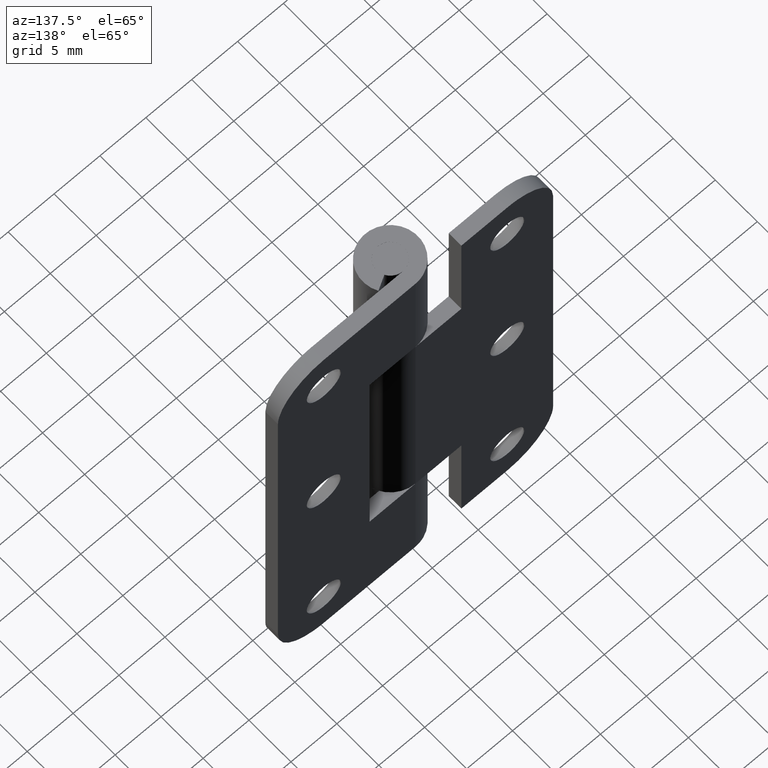
[diagram: clean part render]
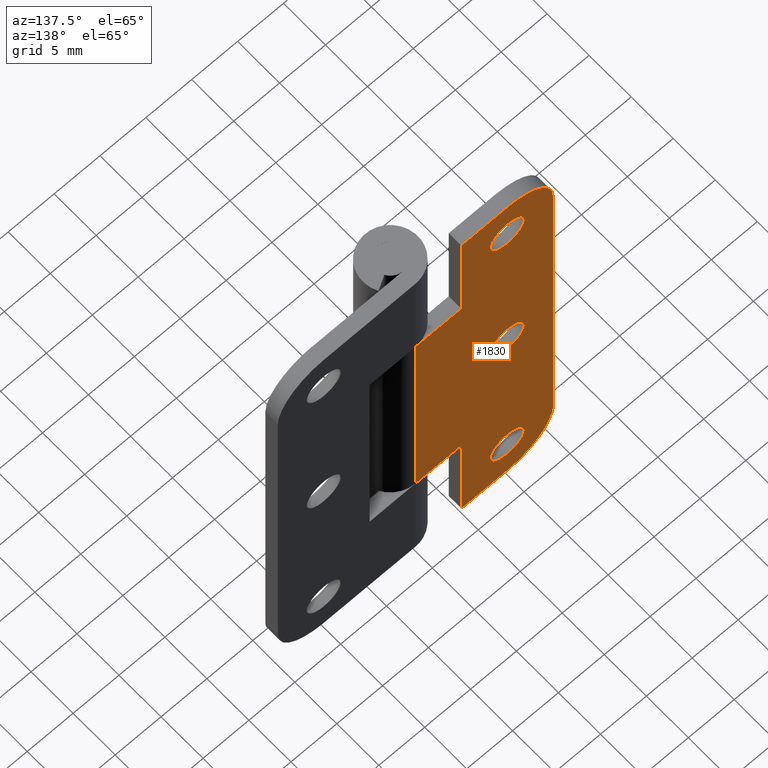
[diagram: same view with one face highlighted and labeled with its STEP entity id]
A machine part, auxiliary view. The second image highlights one B-rep face of the part: STEP entity #1830.
In plain terms, the highlighted face is a freeform B-spline surface patch.
Its self-contained STEP definition (entity closure, byte-faithful):
#330=CARTESIAN_POINT('',(-8.162081995989144,3.0,44.788913736750231));
#331=VERTEX_POINT('',#330);
#337=CARTESIAN_POINT('',(-10.0,3.0,43.149999999999999));
#338=VERTEX_POINT('',#337);
#339=CARTESIAN_POINT('',(-8.162081995989144,3.000000000000000,44.788913736750231));
#340=CARTESIAN_POINT('',(-8.350312499917568,3.000000000000000,43.149999999999999));
#341=CARTESIAN_POINT('',(-10.0,3.0,43.149999999999999));
#349=(BOUNDED_CURVE()B_SPLINE_CURVE(2,(#339,#340,#341),.UNSPECIFIED.,.F.,.U.)B_SPLINE_CURVE_WITH_KNOTS((3,3),(0.269767762042324,0.500000000000000),.UNSPECIFIED.)CURVE()GEOMETRIC_REPRESENTATION_ITEM()RATIONAL_B_SPLINE_CURVE((0.957343724298200,0.730266154999807,1.0))REPRESENTATION_ITEM(''));
#350=EDGE_CURVE('',#331,#338,#349,.T.);
#352=CARTESIAN_POINT('',(-11.846549376997309,3.0,44.887060200501132));
#353=VERTEX_POINT('',#352);
#354=CARTESIAN_POINT('',(-10.0,3.0,43.149999999999999));
#355=CARTESIAN_POINT('',(-11.740306221208408,3.0,43.150000000000006));
#356=CARTESIAN_POINT('',(-11.846549376997316,3.000000000000000,44.887060200501118));
#364=(BOUNDED_CURVE()B_SPLINE_CURVE(2,(#354,#355,#356),.UNSPECIFIED.,.F.,.U.)B_SPLINE_CURVE_WITH_KNOTS((3,3),(0.500000000000000,0.739332961987919),.UNSPECIFIED.)CURVE()GEOMETRIC_REPRESENTATION_ITEM()RATIONAL_B_SPLINE_CURVE((1.0,0.719603993580803,0.976072041128726))REPRESENTATION_ITEM(''));
#365=EDGE_CURVE('',#338,#353,#364,.T.);
#460=CARTESIAN_POINT('',(-10.0,3.0,46.849999999999987));
#461=VERTEX_POINT('',#460);
#462=CARTESIAN_POINT('',(-11.846549376997306,3.000000000000000,44.887060200501125));
#463=CARTESIAN_POINT('',(-11.850000000000000,3.000000000000000,44.943477386534411));
#464=CARTESIAN_POINT('',(-11.850000000000000,3.0,45.0));
#465=CARTESIAN_POINT('',(-11.849999999999998,3.0,46.849999999999994));
#466=CARTESIAN_POINT('',(-10.0,3.0,46.849999999999987));
#474=(BOUNDED_CURVE()B_SPLINE_CURVE(2,(#462,#463,#464,#465,#466),.UNSPECIFIED.,.F.,.U.)B_SPLINE_CURVE_WITH_KNOTS((3,2,3),(0.739332961987919,0.750000000000000,1.0),.UNSPECIFIED.)CURVE()GEOMETRIC_REPRESENTATION_ITEM()RATIONAL_B_SPLINE_CURVE((0.976072041128725,0.987502787605744,1.0,0.707106781186548,1.0))REPRESENTATION_ITEM(''));
#475=EDGE_CURVE('',#353,#461,#474,.T.);
#477=CARTESIAN_POINT('',(-10.0,3.0,46.849999999999987));
#478=CARTESIAN_POINT('',(-8.150000000000000,3.0,46.849999999999994));
#479=CARTESIAN_POINT('',(-8.150000000000000,3.0,45.0));
#480=CARTESIAN_POINT('',(-8.150000000000000,3.000000000000000,44.894111081392616));
#481=CARTESIAN_POINT('',(-8.162081995989144,3.000000000000000,44.788913736750231));
#489=(BOUNDED_CURVE()B_SPLINE_CURVE(2,(#477,#478,#479,#480,#481),.UNSPECIFIED.,.F.,.U.)B_SPLINE_CURVE_WITH_KNOTS((3,2,3),(0.0,0.250000000000000,0.269767762042324),.UNSPECIFIED.)CURVE()GEOMETRIC_REPRESENTATION_ITEM()RATIONAL_B_SPLINE_CURVE((1.0,0.707106781186548,1.0,0.976840626186741,0.957343724298200))REPRESENTATION_ITEM(''));
#490=EDGE_CURVE('',#461,#331,#489,.T.);
#658=CARTESIAN_POINT('',(-8.162081995989144,3.0,24.788913736750249));
#659=VERTEX_POINT('',#658);
#665=CARTESIAN_POINT('',(-10.0,3.0,23.149999999999999));
#666=VERTEX_POINT('',#665);
#667=CARTESIAN_POINT('',(-8.162081995989144,3.0,24.788913736750246));
#668=CARTESIAN_POINT('',(-8.350312499917557,3.000000000000001,23.150000000000002));
#669=CARTESIAN_POINT('',(-10.0,3.0,23.149999999999999));
#677=(BOUNDED_CURVE()B_SPLINE_CURVE(2,(#667,#668,#669),.UNSPECIFIED.,.F.,.U.)B_SPLINE_CURVE_WITH_KNOTS((3,3),(0.269767762042323,0.500000000000000),.UNSPECIFIED.)CURVE()GEOMETRIC_REPRESENTATION_ITEM()RATIONAL_B_SPLINE_CURVE((0.957343724298202,0.730266154999806,1.0))REPRESENTATION_ITEM(''));
#678=EDGE_CURVE('',#659,#666,#677,.T.);
#680=CARTESIAN_POINT('',(-11.846549376997309,3.0,24.887060200501129));
#681=VERTEX_POINT('',#680);
#682=CARTESIAN_POINT('',(-10.0,3.0,23.149999999999999));
#683=CARTESIAN_POINT('',(-11.740306221208408,3.0,23.149999999999995));
#684=CARTESIAN_POINT('',(-11.846549376997316,3.000000000000000,24.887060200501132));
#692=(BOUNDED_CURVE()B_SPLINE_CURVE(2,(#682,#683,#684),.UNSPECIFIED.,.F.,.U.)B_SPLINE_CURVE_WITH_KNOTS((3,3),(0.500000000000000,0.739332961987919),.UNSPECIFIED.)CURVE()GEOMETRIC_REPRESENTATION_ITEM()RATIONAL_B_SPLINE_CURVE((1.0,0.719603993580803,0.976072041128726))REPRESENTATION_ITEM(''));
#693=EDGE_CURVE('',#666,#681,#692,.T.);
#788=CARTESIAN_POINT('',(-10.0,3.0,26.850000000000001));
#789=VERTEX_POINT('',#788);
#790=CARTESIAN_POINT('',(-11.846549376997306,3.000000000000000,24.887060200501129));
#791=CARTESIAN_POINT('',(-11.850000000000000,3.000000000000000,24.943477386534415));
#792=CARTESIAN_POINT('',(-11.850000000000000,3.0,25.0));
#793=CARTESIAN_POINT('',(-11.849999999999998,3.0,26.849999999999998));
#794=CARTESIAN_POINT('',(-10.0,3.0,26.850000000000001));
#802=(BOUNDED_CURVE()B_SPLINE_CURVE(2,(#790,#791,#792,#793,#794),.UNSPECIFIED.,.F.,.U.)B_SPLINE_CURVE_WITH_KNOTS((3,2,3),(0.739332961987919,0.750000000000000,1.0),.UNSPECIFIED.)CURVE()GEOMETRIC_REPRESENTATION_ITEM()RATIONAL_B_SPLINE_CURVE((0.976072041128725,0.987502787605744,1.0,0.707106781186548,1.0))REPRESENTATION_ITEM(''));
#803=EDGE_CURVE('',#681,#789,#802,.T.);
#805=CARTESIAN_POINT('',(-10.0,3.0,26.850000000000001));
#806=CARTESIAN_POINT('',(-8.150000000000000,3.0,26.849999999999998));
#807=CARTESIAN_POINT('',(-8.150000000000000,3.0,25.0));
#808=CARTESIAN_POINT('',(-8.150000000000002,3.0,24.894111081392627));
#809=CARTESIAN_POINT('',(-8.162081995989144,3.0,24.788913736750246));
#817=(BOUNDED_CURVE()B_SPLINE_CURVE(2,(#805,#806,#807,#808,#809),.UNSPECIFIED.,.F.,.U.)B_SPLINE_CURVE_WITH_KNOTS((3,2,3),(0.0,0.250000000000000,0.269767762042323),.UNSPECIFIED.)CURVE()GEOMETRIC_REPRESENTATION_ITEM()RATIONAL_B_SPLINE_CURVE((1.0,0.707106781186548,1.0,0.976840626186742,0.957343724298202))REPRESENTATION_ITEM(''));
#818=EDGE_CURVE('',#789,#659,#817,.T.);
#986=CARTESIAN_POINT('',(-8.162081995989142,3.0,4.788913736750339));
#987=VERTEX_POINT('',#986);
#993=CARTESIAN_POINT('',(-10.0,3.0,3.150000000000100));
#994=VERTEX_POINT('',#993);
#995=CARTESIAN_POINT('',(-8.162081995989142,3.000000000000000,4.788913736750339));
#996=CARTESIAN_POINT('',(-8.350312499917564,3.000000000000000,3.150000000000099));
#997=CARTESIAN_POINT('',(-10.0,3.0,3.150000000000100));
#1005=(BOUNDED_CURVE()B_SPLINE_CURVE(2,(#995,#996,#997),.UNSPECIFIED.,.F.,.U.)B_SPLINE_CURVE_WITH_KNOTS((3,3),(0.269767762042324,0.500000000000000),.UNSPECIFIED.)CURVE()GEOMETRIC_REPRESENTATION_ITEM()RATIONAL_B_SPLINE_CURVE((0.957343724298201,0.730266154999806,1.0))REPRESENTATION_ITEM(''));
#1006=EDGE_CURVE('',#987,#994,#1005,.T.);
#1008=CARTESIAN_POINT('',(-11.846549376997309,3.0,4.887060200501230));
#1009=VERTEX_POINT('',#1008);
#1010=CARTESIAN_POINT('',(-10.0,3.0,3.150000000000100));
#1011=CARTESIAN_POINT('',(-11.740306221208408,3.0,3.150000000000101));
#1012=CARTESIAN_POINT('',(-11.846549376997316,3.000000000000000,4.887060200501230));
#1020=(BOUNDED_CURVE()B_SPLINE_CURVE(2,(#1010,#1011,#1012),.UNSPECIFIED.,.F.,.U.)B_SPLINE_CURVE_WITH_KNOTS((3,3),(0.500000000000000,0.739332961987919),.UNSPECIFIED.)CURVE()GEOMETRIC_REPRESENTATION_ITEM()RATIONAL_B_SPLINE_CURVE((1.0,0.719603993580803,0.976072041128726))REPRESENTATION_ITEM(''));
#1021=EDGE_CURVE('',#994,#1009,#1020,.T.);
#1116=CARTESIAN_POINT('',(-10.0,3.0,6.850000000000100));
#1117=VERTEX_POINT('',#1116);
#1118=CARTESIAN_POINT('',(-11.846549376997306,3.000000000000000,4.887060200501230));
#1119=CARTESIAN_POINT('',(-11.850000000000000,3.000000000000000,4.943477386534514));
#1120=CARTESIAN_POINT('',(-11.850000000000000,3.0,5.000000000000100));
#1121=CARTESIAN_POINT('',(-11.849999999999998,3.0,6.850000000000100));
#1122=CARTESIAN_POINT('',(-10.0,3.0,6.850000000000100));
#1130=(BOUNDED_CURVE()B_SPLINE_CURVE(2,(#1118,#1119,#1120,#1121,#1122),.UNSPECIFIED.,.F.,.U.)B_SPLINE_CURVE_WITH_KNOTS((3,2,3),(0.739332961987919,0.750000000000000,1.0),.UNSPECIFIED.)CURVE()GEOMETRIC_REPRESENTATION_ITEM()RATIONAL_B_SPLINE_CURVE((0.976072041128725,0.987502787605744,1.0,0.707106781186548,1.0))REPRESENTATION_ITEM(''));
#1131=EDGE_CURVE('',#1009,#1117,#1130,.T.);
#1133=CARTESIAN_POINT('',(-10.0,3.0,6.850000000000100));
#1134=CARTESIAN_POINT('',(-8.150000000000000,3.0,6.850000000000100));
#1135=CARTESIAN_POINT('',(-8.150000000000000,3.0,5.000000000000100));
#1136=CARTESIAN_POINT('',(-8.150000000000000,3.000000000000000,4.894111081392721));
#1137=CARTESIAN_POINT('',(-8.162081995989142,3.000000000000000,4.788913736750339));
#1145=(BOUNDED_CURVE()B_SPLINE_CURVE(2,(#1133,#1134,#1135,#1136,#1137),.UNSPECIFIED.,.F.,.U.)B_SPLINE_CURVE_WITH_KNOTS((3,2,3),(0.0,0.250000000000000,0.269767762042324),.UNSPECIFIED.)CURVE()GEOMETRIC_REPRESENTATION_ITEM()RATIONAL_B_SPLINE_CURVE((1.0,0.707106781186548,1.0,0.976840626186741,0.957343724298201))REPRESENTATION_ITEM(''));
#1146=EDGE_CURVE('',#1117,#987,#1145,.T.);
#1310=CARTESIAN_POINT('',(-10.0,3.0,50.0));
#1311=VERTEX_POINT('',#1310);
#1317=CARTESIAN_POINT('',(-15.0,3.0,45.0));
#1318=VERTEX_POINT('',#1317);
#1319=CARTESIAN_POINT('',(-15.0,3.0,45.0));
#1320=CARTESIAN_POINT('',(-14.999999999999995,3.0,49.999999999999986));
#1321=CARTESIAN_POINT('',(-10.0,3.0,49.999999999999993));
#1329=(BOUNDED_CURVE()B_SPLINE_CURVE(2,(#1319,#1320,#1321),.UNSPECIFIED.,.F.,.U.)CURVE()GEOMETRIC_REPRESENTATION_ITEM()QUASI_UNIFORM_CURVE()RATIONAL_B_SPLINE_CURVE((1.0,0.707106781186548,1.0))REPRESENTATION_ITEM(''));
#1330=EDGE_CURVE('',#1318,#1311,#1329,.T.);
#1371=CARTESIAN_POINT('',(-15.0,3.0,5.0));
#1372=VERTEX_POINT('',#1371);
#1378=CARTESIAN_POINT('',(-10.0,3.0,0.0));
#1379=VERTEX_POINT('',#1378);
#1380=CARTESIAN_POINT('',(-10.0,3.0,0.0));
#1381=CARTESIAN_POINT('',(-14.999999999999995,3.0,0.0));
#1382=CARTESIAN_POINT('',(-15.0,3.0,5.0));
#1390=(BOUNDED_CURVE()B_SPLINE_CURVE(2,(#1380,#1381,#1382),.UNSPECIFIED.,.F.,.U.)CURVE()GEOMETRIC_REPRESENTATION_ITEM()QUASI_UNIFORM_CURVE()RATIONAL_B_SPLINE_CURVE((1.0,0.707106781186548,1.0))REPRESENTATION_ITEM(''));
#1391=EDGE_CURVE('',#1379,#1372,#1390,.T.);
#1408=CARTESIAN_POINT('',(-5.0,3.0,12.000000000000121));
#1409=VERTEX_POINT('',#1408);
#1415=CARTESIAN_POINT('',(0.0,3.0,12.000000000000121));
#1416=VERTEX_POINT('',#1415);
#1417=CARTESIAN_POINT('',(-5.0,3.0,12.000000000000121));
#1418=CARTESIAN_POINT('',(0.0,3.0,12.000000000000121));
#1419=QUASI_UNIFORM_CURVE('',1,(#1417,#1418),.UNSPECIFIED.,.F.,.U.);
#1420=EDGE_CURVE('',#1409,#1416,#1419,.T.);
#1492=CARTESIAN_POINT('',(-5.0,3.0,38.0));
#1493=VERTEX_POINT('',#1492);
#1544=CARTESIAN_POINT('',(0.0,3.0,38.0));
#1545=VERTEX_POINT('',#1544);
#1561=CARTESIAN_POINT('',(-5.0,3.0,38.0));
#1562=CARTESIAN_POINT('',(0.0,3.0,38.0));
#1563=QUASI_UNIFORM_CURVE('',1,(#1561,#1562),.UNSPECIFIED.,.F.,.U.);
#1564=EDGE_CURVE('',#1493,#1545,#1563,.T.);
#1669=CARTESIAN_POINT('',(0.0,3.0,38.0));
#1670=CARTESIAN_POINT('',(0.0,3.0,12.000000000000121));
#1671=QUASI_UNIFORM_CURVE('',1,(#1669,#1670),.UNSPECIFIED.,.F.,.U.);
#1672=EDGE_CURVE('',#1545,#1416,#1671,.T.);
#1692=CARTESIAN_POINT('',(-5.0,3.0,50.0));
#1693=VERTEX_POINT('',#1692);
#1694=CARTESIAN_POINT('',(-5.0,3.0,38.0));
#1695=CARTESIAN_POINT('',(-5.0,3.0,50.0));
#1696=QUASI_UNIFORM_CURVE('',1,(#1694,#1695),.UNSPECIFIED.,.F.,.U.);
#1697=EDGE_CURVE('',#1493,#1693,#1696,.T.);
#1720=CARTESIAN_POINT('',(-5.0,3.0,0.0));
#1721=VERTEX_POINT('',#1720);
#1722=CARTESIAN_POINT('',(-10.0,3.0,0.0));
#1723=CARTESIAN_POINT('',(-5.0,3.0,0.0));
#1724=QUASI_UNIFORM_CURVE('',1,(#1722,#1723),.UNSPECIFIED.,.F.,.U.);
#1725=EDGE_CURVE('',#1379,#1721,#1724,.T.);
#1740=CARTESIAN_POINT('',(-15.0,3.0,45.0));
#1741=CARTESIAN_POINT('',(-15.0,3.0,5.0));
#1742=QUASI_UNIFORM_CURVE('',1,(#1740,#1741),.UNSPECIFIED.,.F.,.U.);
#1743=EDGE_CURVE('',#1318,#1372,#1742,.T.);
#1760=CARTESIAN_POINT('',(-5.0,3.0,50.0));
#1761=CARTESIAN_POINT('',(-10.0,3.0,50.0));
#1762=QUASI_UNIFORM_CURVE('',1,(#1760,#1761),.UNSPECIFIED.,.F.,.U.);
#1763=EDGE_CURVE('',#1693,#1311,#1762,.T.);
#1787=CARTESIAN_POINT('',(-5.0,3.0,0.0));
#1788=CARTESIAN_POINT('',(-5.0,3.0,12.000000000000121));
#1789=QUASI_UNIFORM_CURVE('',1,(#1787,#1788),.UNSPECIFIED.,.F.,.U.);
#1790=EDGE_CURVE('',#1721,#1409,#1789,.T.);
#1795=CARTESIAN_POINT('',(-15.749249970927091,3.0,52.497499903090286));
#1796=CARTESIAN_POINT('',(0.749250373258442,3.0,52.497499903090286));
#1797=CARTESIAN_POINT('',(-15.749249970927091,3.0,-2.497501244194806));
#1798=CARTESIAN_POINT('',(0.749250373258442,3.0,-2.497501244194806));
#1799=B_SPLINE_SURFACE_WITH_KNOTS('',1,1,((#1795,#1797),(#1796,#1798)),.UNSPECIFIED.,.F.,.F.,.U.,(2,2),(2,2),(0.0,16.498500344185530),(0.0,54.995001147285102),.UNSPECIFIED.);
#1800=ORIENTED_EDGE('',*,*,#1725,.F.);
#1801=ORIENTED_EDGE('',*,*,#1391,.T.);
#1802=ORIENTED_EDGE('',*,*,#1743,.F.);
#1803=ORIENTED_EDGE('',*,*,#1330,.T.);
#1804=ORIENTED_EDGE('',*,*,#1763,.F.);
#1805=ORIENTED_EDGE('',*,*,#1697,.F.);
#1806=ORIENTED_EDGE('',*,*,#1564,.T.);
#1807=ORIENTED_EDGE('',*,*,#1672,.T.);
#1808=ORIENTED_EDGE('',*,*,#1420,.F.);
#1809=ORIENTED_EDGE('',*,*,#1790,.F.);
#1810=EDGE_LOOP('',(#1800,#1801,#1802,#1803,#1804,#1805,#1806,#1807,#1808,#1809));
#1811=FACE_OUTER_BOUND('',#1810,.T.);
#1812=ORIENTED_EDGE('',*,*,#1021,.F.);
#1813=ORIENTED_EDGE('',*,*,#1006,.F.);
#1814=ORIENTED_EDGE('',*,*,#1146,.F.);
#1815=ORIENTED_EDGE('',*,*,#1131,.F.);
#1816=EDGE_LOOP('',(#1812,#1813,#1814,#1815));
#1817=FACE_BOUND('',#1816,.T.);
#1818=ORIENTED_EDGE('',*,*,#693,.F.);
#1819=ORIENTED_EDGE('',*,*,#678,.F.);
#1820=ORIENTED_EDGE('',*,*,#818,.F.);
#1821=ORIENTED_EDGE('',*,*,#803,.F.);
#1822=EDGE_LOOP('',(#1818,#1819,#1820,#1821));
#1823=FACE_BOUND('',#1822,.T.);
#1824=ORIENTED_EDGE('',*,*,#365,.F.);
#1825=ORIENTED_EDGE('',*,*,#350,.F.);
#1826=ORIENTED_EDGE('',*,*,#490,.F.);
#1827=ORIENTED_EDGE('',*,*,#475,.F.);
#1828=EDGE_LOOP('',(#1824,#1825,#1826,#1827));
#1829=FACE_BOUND('',#1828,.T.);
#1830=ADVANCED_FACE('',(#1811,#1817,#1823,#1829),#1799,.T.);